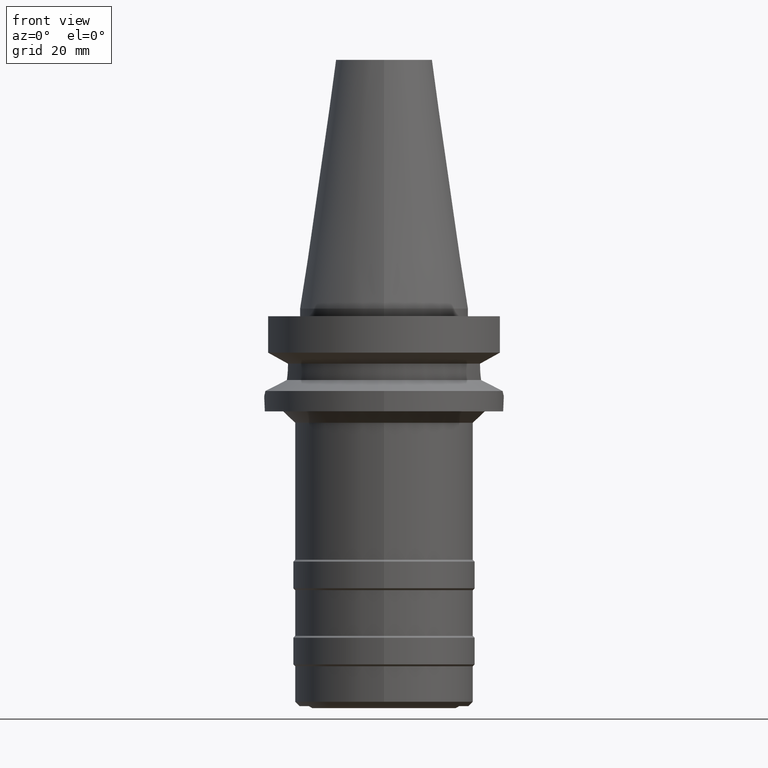
[diagram: clean part render]
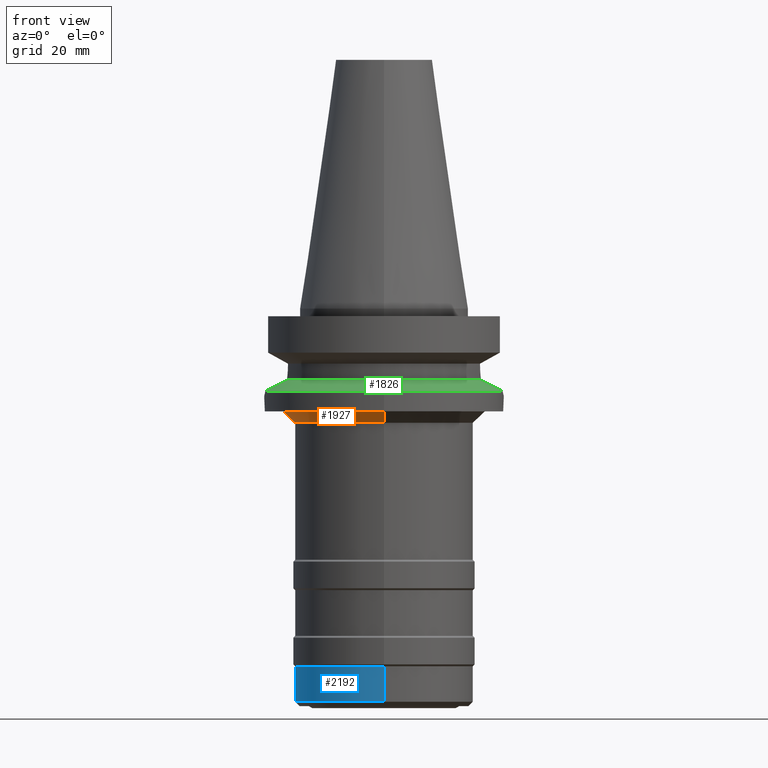
[diagram: same view with three faces highlighted in distinct colors, each labeled with its STEP entity id]
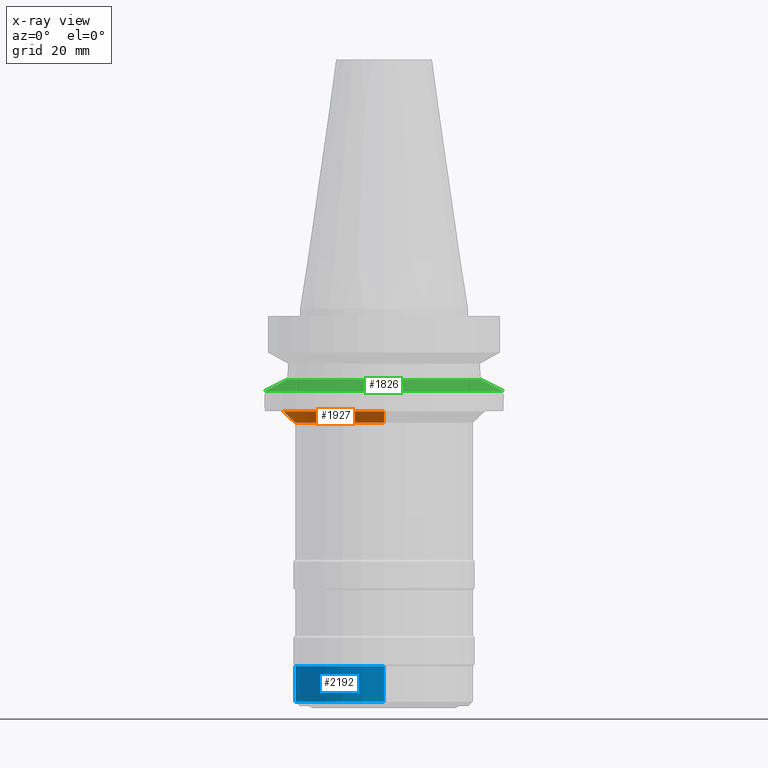
[diagram: x-ray of the same camera — body ghosted, the three highlighted faces saturated]
A machine part, front view with three faces highlighted in distinct colors.
The next image is the same camera in x-ray (body ghosted, the three faces saturated) — at least one of them is partly hidden behind the body in this view.
Their STEP definitions:

[orange] entity #1927 — the highlighted conical surface has half-angle 45 deg.
#645=CARTESIAN_POINT('',(0.E0,0.E0,-2.7E1));
#646=DIRECTION('',(0.E0,0.E0,-1.E0));
#647=DIRECTION('',(0.E0,-1.E0,0.E0));
#648=AXIS2_PLACEMENT_3D('',#645,#646,#647);
#661=DIRECTION('',(0.E0,7.071067811865E-1,-7.071067811865E-1));
#662=VECTOR('',#661,4.242640687119E0);
#663=CARTESIAN_POINT('',(0.E0,-2.65E1,-2.7E1));
#664=LINE('',#663,#662);
#668=CARTESIAN_POINT('',(0.E0,0.E0,-3.E1));
#669=DIRECTION('',(0.E0,0.E0,-1.E0));
#670=DIRECTION('',(0.E0,-1.E0,0.E0));
#671=AXIS2_PLACEMENT_3D('',#668,#669,#670);
#676=DIRECTION('',(0.E0,-7.071067811865E-1,-7.071067811866E-1));
#677=VECTOR('',#676,4.242640687119E0);
#678=CARTESIAN_POINT('',(0.E0,2.65E1,-2.7E1));
#679=LINE('',#678,#677);
#1377=CARTESIAN_POINT('',(0.E0,2.35E1,-3.E1));
#1378=VERTEX_POINT('',#1377);
#1379=CARTESIAN_POINT('',(0.E0,-2.35E1,-3.E1));
#1380=VERTEX_POINT('',#1379);
#1381=CARTESIAN_POINT('',(0.E0,2.65E1,-2.7E1));
#1382=VERTEX_POINT('',#1381);
#1383=CARTESIAN_POINT('',(0.E0,-2.65E1,-2.7E1));
#1384=VERTEX_POINT('',#1383);
#1913=CARTESIAN_POINT('',(0.E0,0.E0,-2.85E1));
#1914=DIRECTION('',(0.E0,0.E0,1.E0));
#1915=DIRECTION('',(0.E0,1.E0,0.E0));
#1916=AXIS2_PLACEMENT_3D('',#1913,#1914,#1915);
#1917=CONICAL_SURFACE('',#1916,2.5E1,4.5E1);
#1919=ORIENTED_EDGE('',*,*,#1918,.F.);
#1920=ORIENTED_EDGE('',*,*,#1906,.F.);
#1922=ORIENTED_EDGE('',*,*,#1921,.T.);
#1924=ORIENTED_EDGE('',*,*,#1923,.T.);
#1925=EDGE_LOOP('',(#1919,#1920,#1922,#1924));
#1926=FACE_OUTER_BOUND('',#1925,.F.);
#649=CIRCLE('',#648,2.65E1);
#672=CIRCLE('',#671,2.35E1);
#1906=EDGE_CURVE('',#1384,#1382,#649,.T.);
#1918=EDGE_CURVE('',#1382,#1378,#679,.T.);
#1921=EDGE_CURVE('',#1384,#1380,#664,.T.);
#1923=EDGE_CURVE('',#1380,#1378,#672,.T.);
#1927=ADVANCED_FACE('',(#1926),#1917,.T.);

[blue] entity #2192 — the highlighted cylindrical surface (partial cylindrical patch) has radius 23.5 mm, axis along (0, 0, -1).
#900=CARTESIAN_POINT('',(0.E0,0.E0,-9.4E1));
#901=DIRECTION('',(0.E0,0.E0,-1.E0));
#902=DIRECTION('',(0.E0,-1.E0,0.E0));
#903=AXIS2_PLACEMENT_3D('',#900,#901,#902);
#931=DIRECTION('',(0.E0,0.E0,-1.E0));
#932=VECTOR('',#931,9.3285E0);
#933=CARTESIAN_POINT('',(0.E0,2.35E1,-9.4E1));
#934=LINE('',#933,#932);
#938=DIRECTION('',(0.E0,0.E0,-1.E0));
#939=VECTOR('',#938,9.3285E0);
#940=CARTESIAN_POINT('',(0.E0,-2.35E1,-9.4E1));
#941=LINE('',#940,#939);
#945=CARTESIAN_POINT('',(0.E0,0.E0,-1.033285E2));
#946=DIRECTION('',(0.E0,0.E0,1.E0));
#947=DIRECTION('',(0.E0,1.E0,0.E0));
#948=AXIS2_PLACEMENT_3D('',#945,#946,#947);
#1341=CARTESIAN_POINT('',(0.E0,2.35E1,-1.033285E2));
#1342=VERTEX_POINT('',#1341);
#1343=CARTESIAN_POINT('',(0.E0,-2.35E1,-1.033285E2));
#1344=VERTEX_POINT('',#1343);
#1345=CARTESIAN_POINT('',(0.E0,2.35E1,-9.4E1));
#1346=VERTEX_POINT('',#1345);
#1347=CARTESIAN_POINT('',(0.E0,-2.35E1,-9.4E1));
#1348=VERTEX_POINT('',#1347);
#2180=CARTESIAN_POINT('',(0.E0,2.129905713077E-14,7.392E1));
#2181=DIRECTION('',(0.E0,0.E0,-1.E0));
#2182=DIRECTION('',(0.E0,-1.E0,0.E0));
#2183=AXIS2_PLACEMENT_3D('',#2180,#2181,#2182);
#2184=CYLINDRICAL_SURFACE('',#2183,2.35E1);
#2185=ORIENTED_EDGE('',*,*,#2170,.F.);
#2186=ORIENTED_EDGE('',*,*,#2147,.F.);
#2187=ORIENTED_EDGE('',*,*,#2174,.T.);
#2189=ORIENTED_EDGE('',*,*,#2188,.F.);
#2190=EDGE_LOOP('',(#2185,#2186,#2187,#2189));
#2191=FACE_OUTER_BOUND('',#2190,.F.);
#904=CIRCLE('',#903,2.35E1);
#949=CIRCLE('',#948,2.35E1);
#2147=EDGE_CURVE('',#1348,#1346,#904,.T.);
#2170=EDGE_CURVE('',#1346,#1342,#934,.T.);
#2174=EDGE_CURVE('',#1348,#1344,#941,.T.);
#2188=EDGE_CURVE('',#1342,#1344,#949,.T.);
#2192=ADVANCED_FACE('',(#2191),#2184,.T.);

[green] entity #1826 — the highlighted conical surface has half-angle 60 deg.
#458=CARTESIAN_POINT('',(-3.117899877609E1,-4.485536235554E0,
-2.163449434733E1));
#459=CARTESIAN_POINT('',(-3.081790690768E1,-4.759485314385E0,
-2.145066465791E1));
#460=CARTESIAN_POINT('',(-3.002924830243E1,-5.291914469826E0,
-2.104897836939E1));
#461=CARTESIAN_POINT('',(-2.847426700203E1,-6.083715656575E0,
-2.025542970766E1));
#462=CARTESIAN_POINT('',(-2.705383459640E1,-6.640442221704E0,
-1.952881381427E1));
#463=CARTESIAN_POINT('',(-2.604019647781E1,-6.958099501092E0,
-1.900895512728E1));
#464=CARTESIAN_POINT('',(-2.553175183775E1,-7.097862220093E0,
-1.874774300139E1));
#469=CARTESIAN_POINT('',(0.E0,0.E0,-1.874774300139E1));
#470=DIRECTION('',(0.E0,0.E0,1.E0));
#471=DIRECTION('',(-9.634623335001E-1,-2.678438573620E-1,0.E0));
#472=AXIS2_PLACEMENT_3D('',#469,#470,#471);
#477=CARTESIAN_POINT('',(0.E0,0.E0,-1.874774300139E1));
#478=DIRECTION('',(0.E0,0.E0,1.E0));
#479=DIRECTION('',(0.E0,-1.E0,0.E0));
#480=AXIS2_PLACEMENT_3D('',#477,#478,#479);
#485=CARTESIAN_POINT('',(2.553175183775E1,-7.097862220093E0,-1.874774300139E1));
#486=CARTESIAN_POINT('',(2.604299546979E1,-6.957330106159E0,-1.901039310221E1));
#487=CARTESIAN_POINT('',(2.700915913484E1,-6.654613538572E0,-1.950588935593E1));
#488=CARTESIAN_POINT('',(2.828269579424E1,-6.156130313161E0,-2.015741237912E1));
#489=CARTESIAN_POINT('',(2.939894870869E1,-5.622913782085E0,-2.072740083319E1));
#490=CARTESIAN_POINT('',(3.036659076772E1,-5.065327332996E0,-2.122078599704E1));
#491=CARTESIAN_POINT('',(3.092322090184E1,-4.679586889051E0,-2.150427937630E1));
#492=CARTESIAN_POINT('',(3.117899877609E1,-4.485536235554E0,-2.163449434733E1));
#497=CARTESIAN_POINT('',(0.E0,0.E0,-2.163449434733E1));
#498=DIRECTION('',(0.E0,0.E0,-1.E0));
#499=DIRECTION('',(9.898094849553E-1,-1.423979757319E-1,0.E0));
#500=AXIS2_PLACEMENT_3D('',#497,#498,#499);
#505=CARTESIAN_POINT('',(0.E0,0.E0,-2.163449434733E1));
#506=DIRECTION('',(0.E0,0.E0,-1.E0));
#507=DIRECTION('',(0.E0,-1.E0,0.E0));
#508=AXIS2_PLACEMENT_3D('',#505,#506,#507);
#527=CARTESIAN_POINT('',(3.117899877609E1,-4.485536235554E0,-2.163449434733E1));
#1391=VERTEX_POINT('',#527);
#1394=CARTESIAN_POINT('',(0.E0,-3.15E1,-2.163449434733E1));
#1395=VERTEX_POINT('',#1394);
#1396=VERTEX_POINT('',#485);
#1407=VERTEX_POINT('',#458);
#1408=VERTEX_POINT('',#464);
#1409=CARTESIAN_POINT('',(0.E0,-2.65E1,-1.874774300139E1));
#1410=VERTEX_POINT('',#1409);
#1810=CARTESIAN_POINT('',(0.E0,0.E0,-2.019111867436E1));
#1811=DIRECTION('',(0.E0,0.E0,-1.E0));
#1812=DIRECTION('',(0.E0,-1.E0,0.E0));
#1813=AXIS2_PLACEMENT_3D('',#1810,#1811,#1812);
#1814=CONICAL_SURFACE('',#1813,2.9E1,6.E1);
#1815=ORIENTED_EDGE('',*,*,#1795,.T.);
#1816=ORIENTED_EDGE('',*,*,#1631,.T.);
#1817=ORIENTED_EDGE('',*,*,#1629,.T.);
#1819=ORIENTED_EDGE('',*,*,#1818,.T.);
#1821=ORIENTED_EDGE('',*,*,#1820,.T.);
#1823=ORIENTED_EDGE('',*,*,#1822,.T.);
#1824=EDGE_LOOP('',(#1815,#1816,#1817,#1819,#1821,#1823));
#1825=FACE_OUTER_BOUND('',#1824,.F.);
#465=B_SPLINE_CURVE_WITH_KNOTS('',3,(#458,#459,#460,#461,#462,#463,#464),
.UNSPECIFIED.,.F.,.F.,(4,1,1,1,4),(0.E0,2.5E-1,5.E-1,7.5E-1,1.E0),
.UNSPECIFIED.);
#473=CIRCLE('',#472,2.65E1);
#481=CIRCLE('',#480,2.65E1);
#493=B_SPLINE_CURVE_WITH_KNOTS('',3,(#485,#486,#487,#488,#489,#490,#491,#492),
.UNSPECIFIED.,.F.,.F.,(4,1,1,1,1,4),(0.E0,2.E-1,4.E-1,6.E-1,8.E-1,1.E0),
.UNSPECIFIED.);
#501=CIRCLE('',#500,3.15E1);
#509=CIRCLE('',#508,3.15E1);
#1629=EDGE_CURVE('',#1410,#1396,#481,.T.);
#1631=EDGE_CURVE('',#1408,#1410,#473,.T.);
#1795=EDGE_CURVE('',#1407,#1408,#465,.T.);
#1818=EDGE_CURVE('',#1396,#1391,#493,.T.);
#1820=EDGE_CURVE('',#1391,#1395,#501,.T.);
#1822=EDGE_CURVE('',#1395,#1407,#509,.T.);
#1826=ADVANCED_FACE('',(#1825),#1814,.T.);